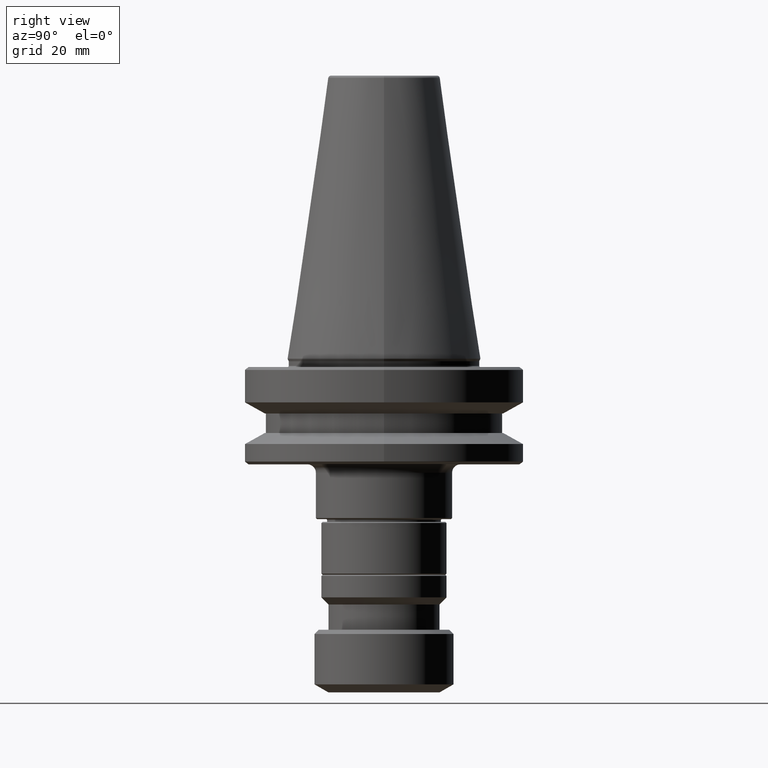
[diagram: clean part render]
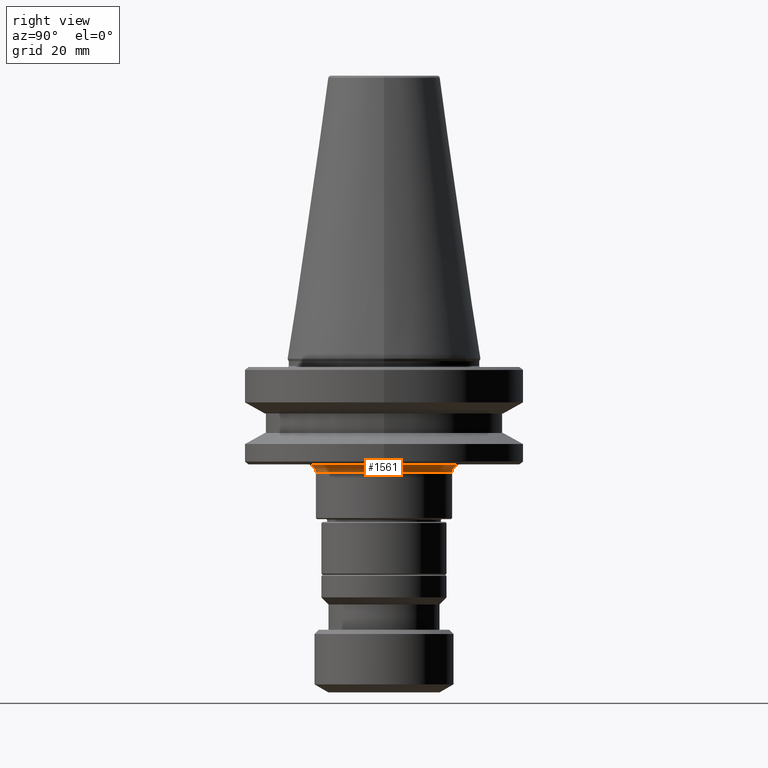
[diagram: same view with one face highlighted and labeled with its STEP entity id]
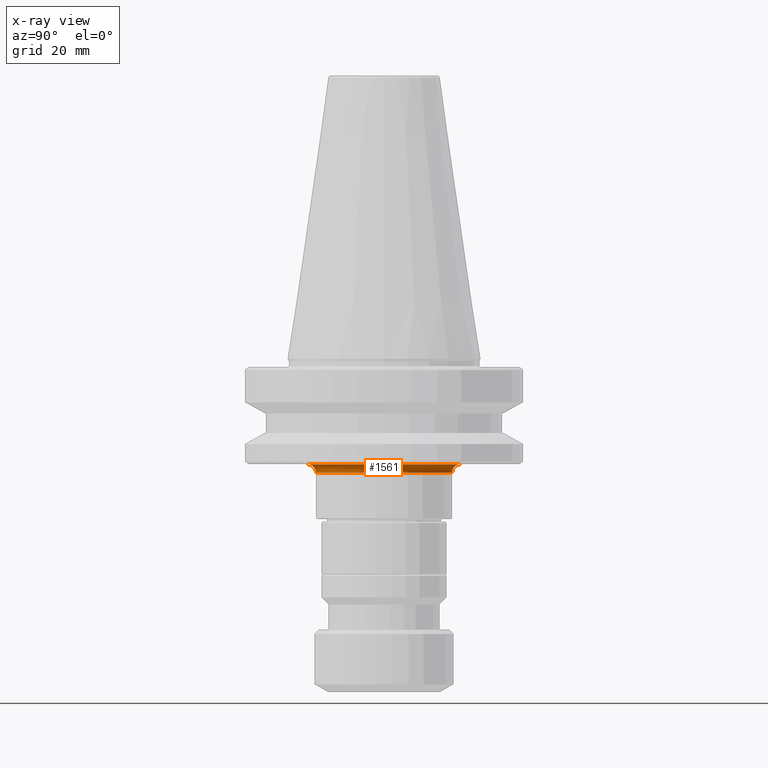
[diagram: x-ray of the same camera — body ghosted, the highlighted face saturated]
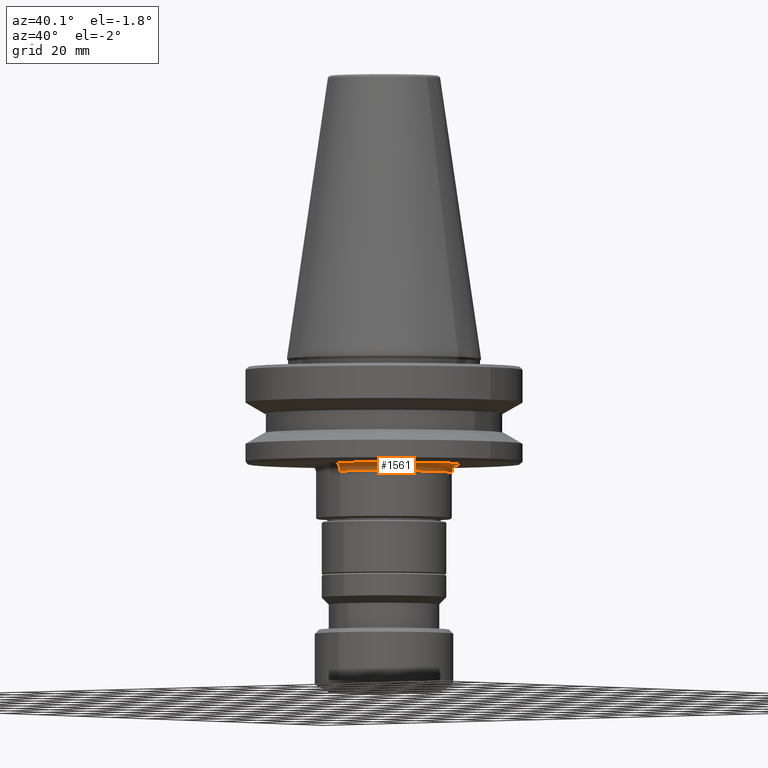
[diagram: same view with one face highlighted and labeled with its STEP entity id]
A machine part, right view. The second image highlights one B-rep face of the part: STEP entity #1561.
The next image is the same camera in x-ray: the body ghosted, the highlighted face saturated — about 0% of this face is hidden behind the body in this view.
A second angle (auxiliary view) of the same face is appended — the face is thin or edge-on in the first view.
In plain terms, the highlighted toroidal blend (fillet) surface has major radius 27.5 mm and minor (blend) radius 3 mm.
Its self-contained STEP definition (entity closure, byte-faithful):
#33 = TOROIDAL_SURFACE ( 'NONE', #275, 27.49999999996968800, 2.999999999999891600 ) ;
#179 = VERTEX_POINT ( 'NONE', #971 ) ;
#180 = AXIS2_PLACEMENT_3D ( 'NONE', #728, #1769, #870 ) ;
#213 = AXIS2_PLACEMENT_3D ( 'NONE', #1698, #1547, #626 ) ;
#251 = CARTESIAN_POINT ( 'NONE',  ( 3.367778697651516800E-015, 27.49999999997137200, -37.99999999999932500 ) ) ;
#275 = AXIS2_PLACEMENT_3D ( 'NONE', #1060, #1366, #1670 ) ;
#437 = AXIS2_PLACEMENT_3D ( 'NONE', #1453, #1122, #624 ) ;
#443 = CIRCLE ( 'NONE', #498, 24.49999999996979500 ) ;
#498 = AXIS2_PLACEMENT_3D ( 'NONE', #1795, #1704, #1309 ) ;
#499 = CARTESIAN_POINT ( 'NONE',  ( 0.0000000000000000000, -27.49999999996800100, -38.00000000000167000 ) ) ;
#624 = DIRECTION ( 'NONE',  ( 0.0000000000000000000, -1.000000000000000000, -4.264265708224051300E-014 ) ) ;
#626 = DIRECTION ( 'NONE',  ( 1.224646799147353700E-016, 1.000000000000000000, 0.0000000000000000000 ) ) ;
#681 = EDGE_CURVE ( 'NONE', #1706, #1098, #1005, .T. ) ;
#728 = CARTESIAN_POINT ( 'NONE',  ( 0.0000000000000000000, -27.49999999996794000, -41.00000000000204600 ) ) ;
#748 = EDGE_CURVE ( 'NONE', #1578, #179, #443, .T. ) ;
#760 = ORIENTED_EDGE ( 'NONE', *, *, #913, .F. ) ;
#856 = ORIENTED_EDGE ( 'NONE', *, *, #748, .T. ) ;
#861 = ORIENTED_EDGE ( 'NONE', *, *, #1356, .T. ) ;
#870 = DIRECTION ( 'NONE',  ( 0.0000000000000000000, 0.0000000000000000000, 1.000000000000000000 ) ) ;
#898 = ORIENTED_EDGE ( 'NONE', *, *, #681, .T. ) ;
#913 = EDGE_CURVE ( 'NONE', #1706, #179, #1024, .T. ) ;
#971 = CARTESIAN_POINT ( 'NONE',  ( 3.184081677779420400E-015, 24.49999999997154300, -40.99999999999970200 ) ) ;
#1005 = CIRCLE ( 'NONE', #437, 27.49999999996968800 ) ;
#1024 = CIRCLE ( 'NONE', #213, 2.999999999999891600 ) ;
#1060 = CARTESIAN_POINT ( 'NONE',  ( 0.0000000000000000000, 1.748601263784621600E-012, -41.00000000000087400 ) ) ;
#1098 = VERTEX_POINT ( 'NONE', #499 ) ;
#1122 = DIRECTION ( 'NONE',  ( 0.0000000000000000000, 4.261637339316356300E-014, -1.000000000000000000 ) ) ;
#1309 = DIRECTION ( 'NONE',  ( 0.0000000000000000000, -1.000000000000000000, -4.248302390152520300E-014 ) ) ;
#1356 = EDGE_CURVE ( 'NONE', #1098, #1578, #1554, .T. ) ;
#1366 = DIRECTION ( 'NONE',  ( -0.0000000000000000000, -4.261637339316356300E-014, 1.000000000000000000 ) ) ;
#1453 = CARTESIAN_POINT ( 'NONE',  ( 0.0000000000000000000, 1.748601263784621600E-012, -38.00000000000000700 ) ) ;
#1526 = FACE_OUTER_BOUND ( 'NONE', #1778, .T. ) ;
#1547 = DIRECTION ( 'NONE',  ( 1.000000000000000000, -1.224646799147353200E-016, -5.219000526720618400E-030 ) ) ;
#1554 = CIRCLE ( 'NONE', #180, 2.999999999999891600 ) ;
#1561 = ADVANCED_FACE ( 'NONE', ( #1526 ), #33, .F. ) ;
#1578 = VERTEX_POINT ( 'NONE', #1832 ) ;
#1670 = DIRECTION ( 'NONE',  ( 0.0000000000000000000, -1.000000000000000000, -4.261637339316356300E-014 ) ) ;
#1698 = CARTESIAN_POINT ( 'NONE',  ( 3.367778697651509300E-015, 27.49999999997143600, -40.99999999999970200 ) ) ;
#1704 = DIRECTION ( 'NONE',  ( -0.0000000000000000000, -4.261637339316356300E-014, 1.000000000000000000 ) ) ;
#1706 = VERTEX_POINT ( 'NONE', #251 ) ;
#1769 = DIRECTION ( 'NONE',  ( -1.000000000000000000, 0.0000000000000000000, -0.0000000000000000000 ) ) ;
#1778 = EDGE_LOOP ( 'NONE', ( #760, #898, #861, #856 ) ) ;
#1795 = CARTESIAN_POINT ( 'NONE',  ( 0.0000000000000000000, 1.747271309119737800E-012, -41.00000000000074600 ) ) ;
#1832 = CARTESIAN_POINT ( 'NONE',  ( 0.0000000000000000000, -24.49999999996804700, -41.00000000000178300 ) ) ;